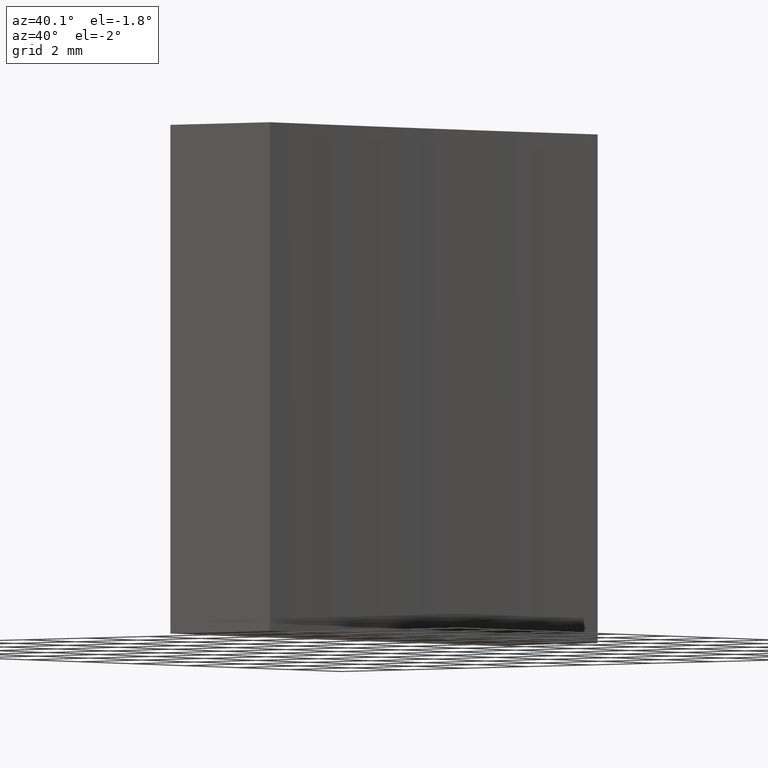
[diagram: clean part render]
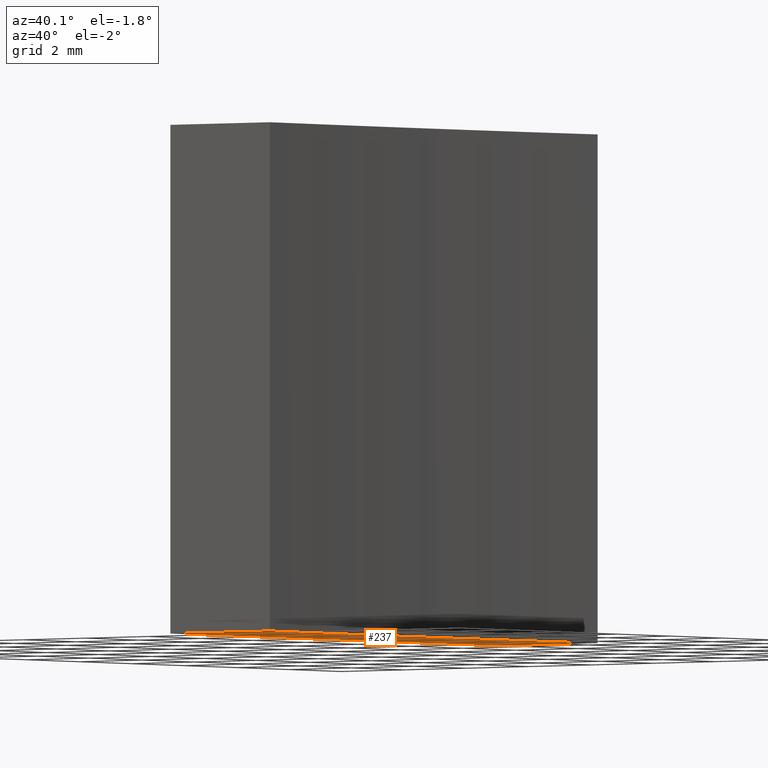
[diagram: same view with one face highlighted and labeled with its STEP entity id]
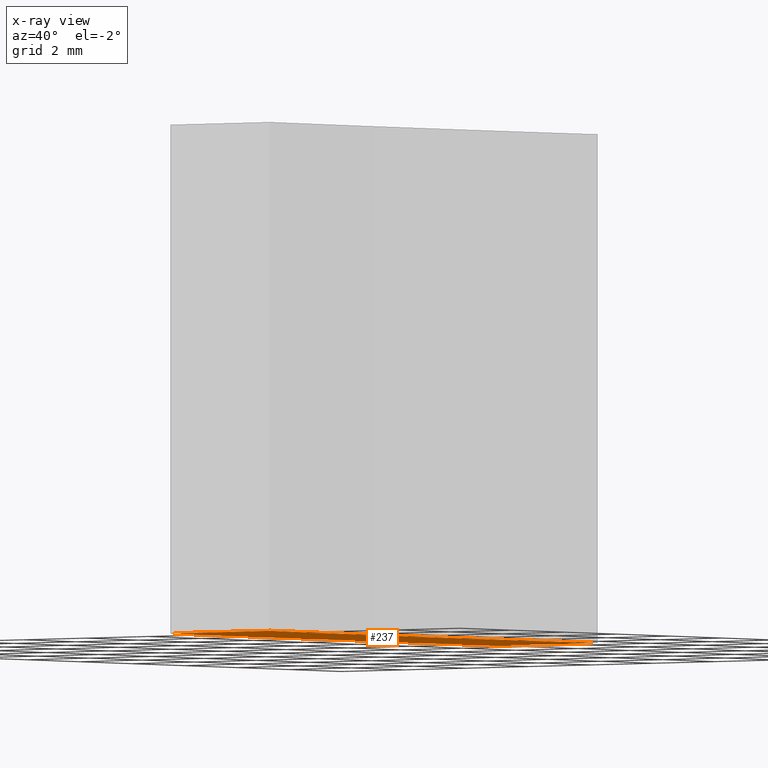
[diagram: x-ray of the same camera — body ghosted, the highlighted face saturated]
A machine part, auxiliary view. The second image highlights one B-rep face of the part: STEP entity #237.
The next image is the same camera in x-ray: the body ghosted, the highlighted face saturated — about 0% of this face is hidden behind the body in this view.
In plain terms, the highlighted planar face has unit normal (0, 0, 1).
Its self-contained STEP definition (entity closure, byte-faithful):
#1 = LINE ( 'NONE', #31, #214 ) ;
#2 = DIRECTION ( 'NONE',  ( -0.0000000000000000000, -0.0000000000000000000, -1.000000000000000000 ) ) ;
#4 = EDGE_CURVE ( 'NONE', #41, #110, #21, .T. ) ;
#8 = VERTEX_POINT ( 'NONE', #185 ) ;
#10 = CARTESIAN_POINT ( 'NONE',  ( 142.3535678156410400, 33.42896463388353800, 0.0000000000000000000 ) ) ;
#14 = VECTOR ( 'NONE', #207, 1000.000000000000000 ) ;
#15 = AXIS2_PLACEMENT_3D ( 'NONE', #78, #80, #153 ) ;
#17 = LINE ( 'NONE', #156, #14 ) ;
#21 = CIRCLE ( 'NONE', #15, 100.0000000000000000 ) ;
#24 = CARTESIAN_POINT ( 'NONE',  ( 145.5490714239444400, 27.17896463388360200, 0.0000000000000000000 ) ) ;
#30 = CIRCLE ( 'NONE', #164, 100.0000000000000000 ) ;
#31 = CARTESIAN_POINT ( 'NONE',  ( 145.5490714239444400, 27.17896463388357000, 0.0000000000000000000 ) ) ;
#32 = DIRECTION ( 'NONE',  ( 0.0000000000000000000, 0.0000000000000000000, 1.000000000000000000 ) ) ;
#33 = CARTESIAN_POINT ( 'NONE',  ( 142.3535678156410400, 27.17896463388353800, 0.0000000000000000000 ) ) ;
#34 = FACE_OUTER_BOUND ( 'NONE', #181, .T. ) ;
#41 = VERTEX_POINT ( 'NONE', #122 ) ;
#49 = EDGE_CURVE ( 'NONE', #59, #41, #30, .T. ) ;
#59 = VERTEX_POINT ( 'NONE', #24 ) ;
#78 = CARTESIAN_POINT ( 'NONE',  ( 245.3535678156401300, 33.42896463388355200, 0.0000000000000000000 ) ) ;
#79 = ORIENTED_EDGE ( 'NONE', *, *, #219, .F. ) ;
#80 = DIRECTION ( 'NONE',  ( -0.0000000000000000000, -0.0000000000000000000, -1.000000000000000000 ) ) ;
#96 = ORIENTED_EDGE ( 'NONE', *, *, #225, .F. ) ;
#109 = VECTOR ( 'NONE', #127, 1000.000000000000000 ) ;
#110 = VERTEX_POINT ( 'NONE', #206 ) ;
#122 = CARTESIAN_POINT ( 'NONE',  ( 145.3535678156401300, 33.42896463388355200, 0.0000000000000000000 ) ) ;
#127 = DIRECTION ( 'NONE',  ( -0.0000000000000000000, -1.000000000000000000, -0.0000000000000000000 ) ) ;
#138 = ORIENTED_EDGE ( 'NONE', *, *, #49, .F. ) ;
#142 = DIRECTION ( 'NONE',  ( 1.000000000000000000, 0.0000000000000000000, -0.0000000000000000000 ) ) ;
#145 = ORIENTED_EDGE ( 'NONE', *, *, #4, .F. ) ;
#153 = DIRECTION ( 'NONE',  ( 1.000000000000000000, 0.0000000000000000000, 0.0000000000000000000 ) ) ;
#156 = CARTESIAN_POINT ( 'NONE',  ( 142.3535678156410400, 39.67896463388353800, 0.0000000000000000000 ) ) ;
#159 = CARTESIAN_POINT ( 'NONE',  ( 245.3535678156401300, 33.42896463388355200, 0.0000000000000000000 ) ) ;
#164 = AXIS2_PLACEMENT_3D ( 'NONE', #170, #2, #209 ) ;
#169 = ORIENTED_EDGE ( 'NONE', *, *, #212, .F. ) ;
#170 = CARTESIAN_POINT ( 'NONE',  ( 245.3535678156401300, 33.42896463388355200, 0.0000000000000000000 ) ) ;
#172 = LINE ( 'NONE', #10, #109 ) ;
#173 = DIRECTION ( 'NONE',  ( 1.000000000000000000, 9.771549775893063200E-015, -0.0000000000000000000 ) ) ;
#177 = AXIS2_PLACEMENT_3D ( 'NONE', #159, #32, #142 ) ;
#181 = EDGE_LOOP ( 'NONE', ( #96, #79, #169, #145, #138 ) ) ;
#185 = CARTESIAN_POINT ( 'NONE',  ( 142.3535678156410400, 39.67896463388353800, 0.0000000000000000000 ) ) ;
#206 = CARTESIAN_POINT ( 'NONE',  ( 145.5490714239444400, 39.67896463388353800, 0.0000000000000000000 ) ) ;
#207 = DIRECTION ( 'NONE',  ( -1.000000000000000000, -0.0000000000000000000, -0.0000000000000000000 ) ) ;
#208 = PLANE ( 'NONE',  #177 ) ;
#209 = DIRECTION ( 'NONE',  ( 1.000000000000000000, 0.0000000000000000000, 0.0000000000000000000 ) ) ;
#212 = EDGE_CURVE ( 'NONE', #110, #8, #17, .T. ) ;
#214 = VECTOR ( 'NONE', #173, 1000.000000000000000 ) ;
#219 = EDGE_CURVE ( 'NONE', #8, #222, #172, .T. ) ;
#222 = VERTEX_POINT ( 'NONE', #33 ) ;
#225 = EDGE_CURVE ( 'NONE', #222, #59, #1, .T. ) ;
#237 = ADVANCED_FACE ( 'NONE', ( #34 ), #208, .F. ) ;